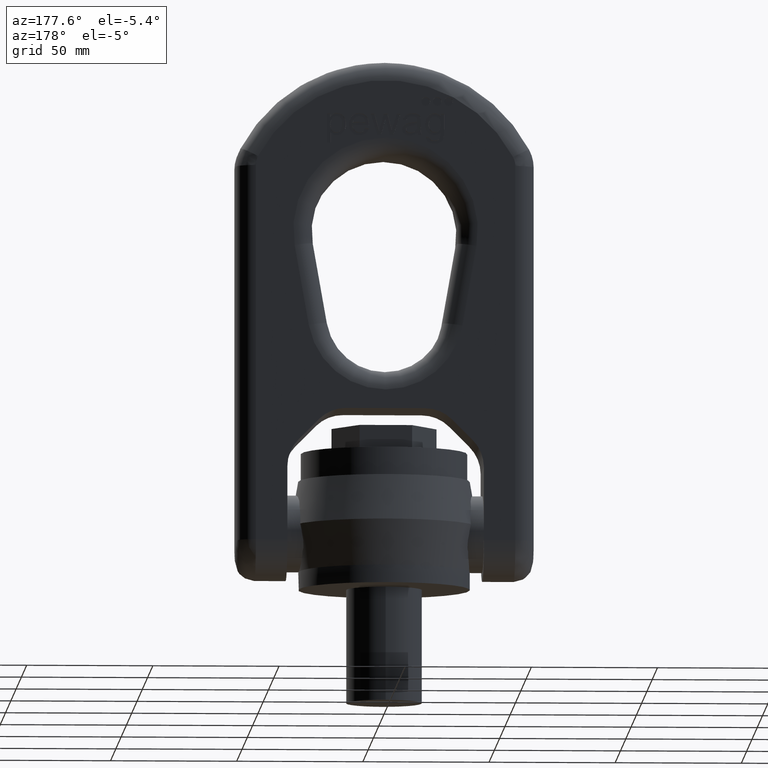
[diagram: clean part render]
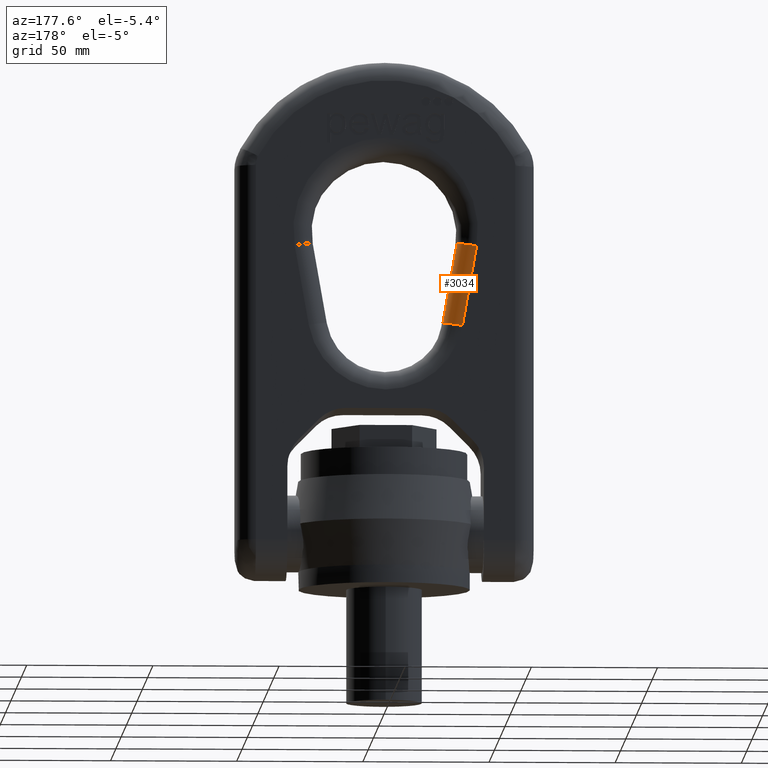
[diagram: same view with one face highlighted and labeled with its STEP entity id]
A machine part, auxiliary view. The second image highlights one B-rep face of the part: STEP entity #3034.
In plain terms, the highlighted cylindrical surface (edge-blend (fillet) strip) has radius 7.6 mm, axis along (-0.1736, 0, 0.9848).
Its self-contained STEP definition (entity closure, byte-faithful):
#1816=LINE('',#7400,#2124);
#1857=LINE('',#7724,#2165);
#2124=VECTOR('',#6263,1.);
#2165=VECTOR('',#6328,1.);
#2659=FACE_OUTER_BOUND('',#3427,.T.);
#3034=ADVANCED_FACE('',(#2659),#3066,.T.);
#3066=CYLINDRICAL_SURFACE('',#6054,7.6);
#3427=EDGE_LOOP('',(#4673,#4674,#4675,#4676));
#4673=ORIENTED_EDGE('',*,*,#5741,.T.);
#4674=ORIENTED_EDGE('',*,*,#5265,.F.);
#4675=ORIENTED_EDGE('',*,*,#5744,.F.);
#4676=ORIENTED_EDGE('',*,*,#5351,.F.);
#4829=VERTEX_POINT('',#7399);
#4830=VERTEX_POINT('',#7401);
#4912=VERTEX_POINT('',#7723);
#4913=VERTEX_POINT('',#7725);
#5265=EDGE_CURVE('',#4829,#4830,#1816,.T.);
#5351=EDGE_CURVE('',#4912,#4913,#1857,.T.);
#5741=EDGE_CURVE('',#4912,#4830,#5819,.T.);
#5744=EDGE_CURVE('',#4913,#4829,#5822,.T.);
#5819=CIRCLE('',#6048,7.6);
#5822=CIRCLE('',#6053,7.6);
#6048=AXIS2_PLACEMENT_3D('',#9829,#6904,#6905);
#6053=AXIS2_PLACEMENT_3D('',#9834,#6914,#6915);
#6054=AXIS2_PLACEMENT_3D('',#9835,#6916,#6917);
#6263=DIRECTION('',(0.173648177666931,-4.06842178555811E-16,-0.984807753012208));
#6328=DIRECTION('',(-0.173648177666931,4.06842178555811E-16,0.984807753012208));
#6904=DIRECTION('',(-0.17364817766693,4.75628795304339E-16,0.984807753012208));
#6905=DIRECTION('',(0.984807753012208,0.,0.17364817766693));
#6914=DIRECTION('',(-0.173648177666931,3.17085863536229E-16,0.984807753012208));
#6915=DIRECTION('',(0.984807753012208,0.,0.173648177666932));
#6916=DIRECTION('',(-0.173648177666931,4.06842178555811E-16,0.984807753012208));
#6917=DIRECTION('',(0.984807753012208,0.,0.173648177666932));
#7399=CARTESIAN_POINT('',(-36.0439637602468,15.2000000000001,135.64447669739));
#7400=CARTESIAN_POINT('',(-30.4564260915327,15.2000000000001,103.955975900383));
#7401=CARTESIAN_POINT('',(-30.4564260915328,15.2000000000001,103.955975900383));
#7723=CARTESIAN_POINT('',(-22.97188716864,7.60000000000007,105.275702050652));
#7724=CARTESIAN_POINT('',(-28.5594248373541,7.60000000000008,136.964202847659));
#7725=CARTESIAN_POINT('',(-28.5594248373541,7.60000000000009,136.964202847659));
#9829=CARTESIAN_POINT('',(-30.4564260915328,7.60000000000007,103.955975900383));
#9834=CARTESIAN_POINT('',(-36.0439637602468,7.60000000000008,135.64447669739));
#9835=CARTESIAN_POINT('',(-36.4197358914007,7.60000000000009,137.775586353122));